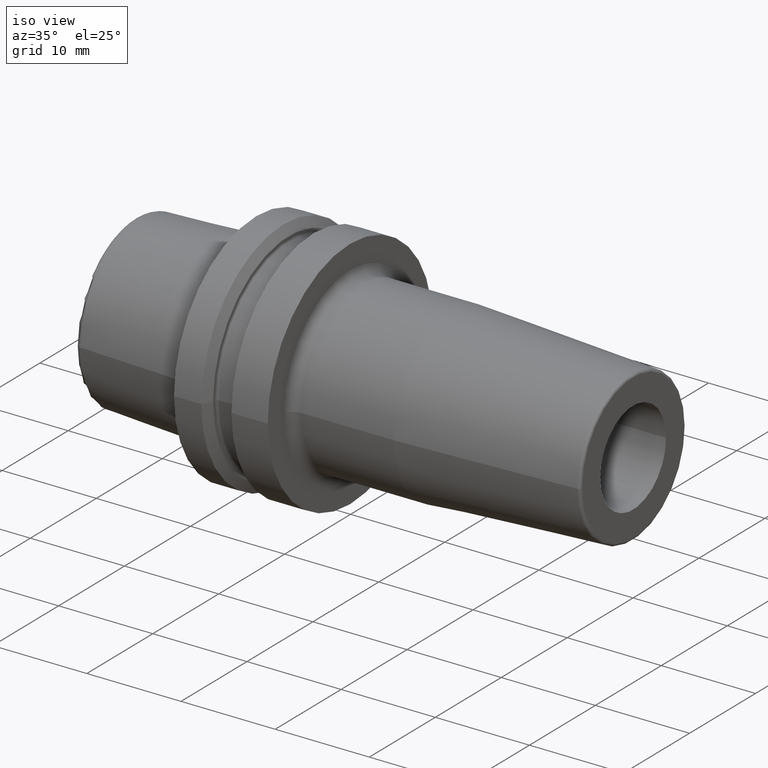
[diagram: clean part render]
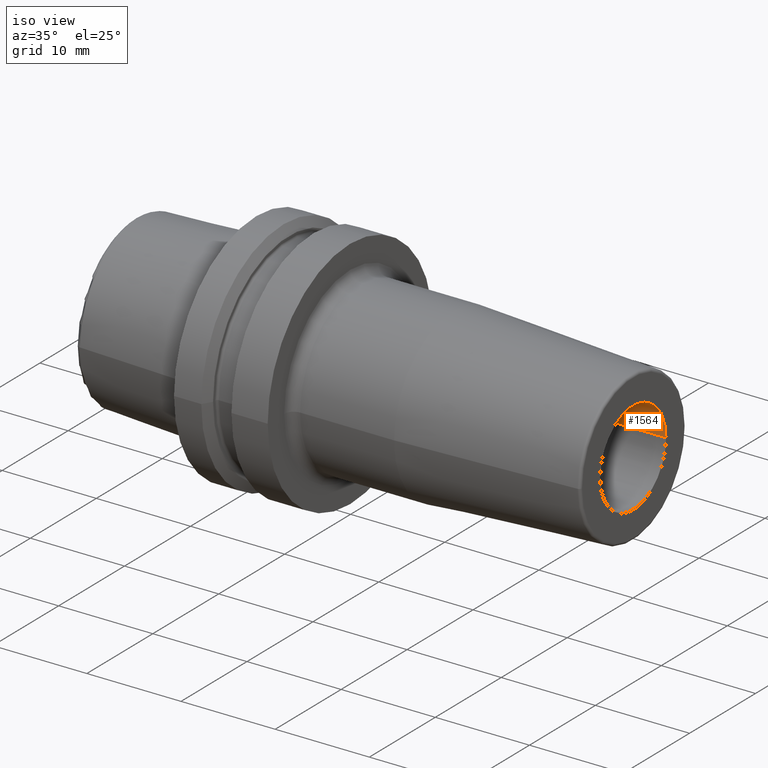
[diagram: same view with one face highlighted and labeled with its STEP entity id]
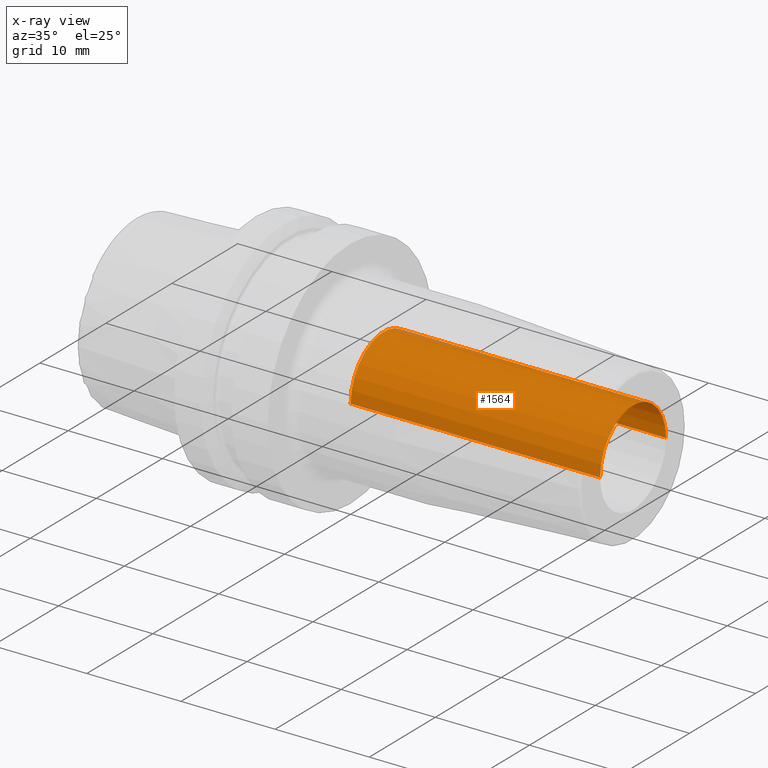
[diagram: x-ray of the same camera — body ghosted, the highlighted face saturated]
A machine part, iso view. The second image highlights one B-rep face of the part: STEP entity #1564.
The next image is the same camera in x-ray: the body ghosted, the highlighted face saturated — about 1% of this face is hidden behind the body in this view.
In plain terms, the highlighted cylindrical surface (partial cylindrical patch) has radius 5 mm, axis along (1, 0, 0).
Its self-contained STEP definition (entity closure, byte-faithful):
#550=CARTESIAN_POINT('',(4.E1,0.E0,0.E0));
#551=DIRECTION('',(1.E0,0.E0,0.E0));
#552=DIRECTION('',(0.E0,1.E0,0.E0));
#553=AXIS2_PLACEMENT_3D('',#550,#551,#552);
#560=DIRECTION('',(-1.E0,0.E0,0.E0));
#561=VECTOR('',#560,2.65E1);
#562=CARTESIAN_POINT('',(4.E1,-5.E0,0.E0));
#563=LINE('',#562,#561);
#564=DIRECTION('',(-1.E0,0.E0,0.E0));
#565=VECTOR('',#564,2.65E1);
#566=CARTESIAN_POINT('',(4.E1,5.E0,0.E0));
#567=LINE('',#566,#565);
#573=CARTESIAN_POINT('',(1.35E1,0.E0,0.E0));
#574=DIRECTION('',(1.E0,0.E0,0.E0));
#575=DIRECTION('',(0.E0,1.E0,0.E0));
#576=AXIS2_PLACEMENT_3D('',#573,#574,#575);
#694=CARTESIAN_POINT('',(1.35E1,5.E0,0.E0));
#695=CARTESIAN_POINT('',(1.35E1,-5.E0,0.E0));
#696=VERTEX_POINT('',#694);
#697=VERTEX_POINT('',#695);
#698=CARTESIAN_POINT('',(4.E1,5.E0,0.E0));
#699=CARTESIAN_POINT('',(4.E1,-5.E0,0.E0));
#700=VERTEX_POINT('',#698);
#701=VERTEX_POINT('',#699);
#1550=CARTESIAN_POINT('',(1.2175E1,0.E0,0.E0));
#1551=DIRECTION('',(1.E0,0.E0,0.E0));
#1552=DIRECTION('',(0.E0,-1.E0,0.E0));
#1553=AXIS2_PLACEMENT_3D('',#1550,#1551,#1552);
#1554=CYLINDRICAL_SURFACE('',#1553,5.E0);
#1555=ORIENTED_EDGE('',*,*,#1543,.F.);
#1557=ORIENTED_EDGE('',*,*,#1556,.T.);
#1559=ORIENTED_EDGE('',*,*,#1558,.T.);
#1561=ORIENTED_EDGE('',*,*,#1560,.F.);
#1562=EDGE_LOOP('',(#1555,#1557,#1559,#1561));
#1563=FACE_OUTER_BOUND('',#1562,.F.);
#1564=ADVANCED_FACE('',(#1563),#1554,.F.);
#554=CIRCLE('',#553,5.E0);
#577=CIRCLE('',#576,5.E0);
#1543=EDGE_CURVE('',#700,#701,#554,.T.);
#1556=EDGE_CURVE('',#700,#696,#567,.T.);
#1558=EDGE_CURVE('',#696,#697,#577,.T.);
#1560=EDGE_CURVE('',#701,#697,#563,.T.);